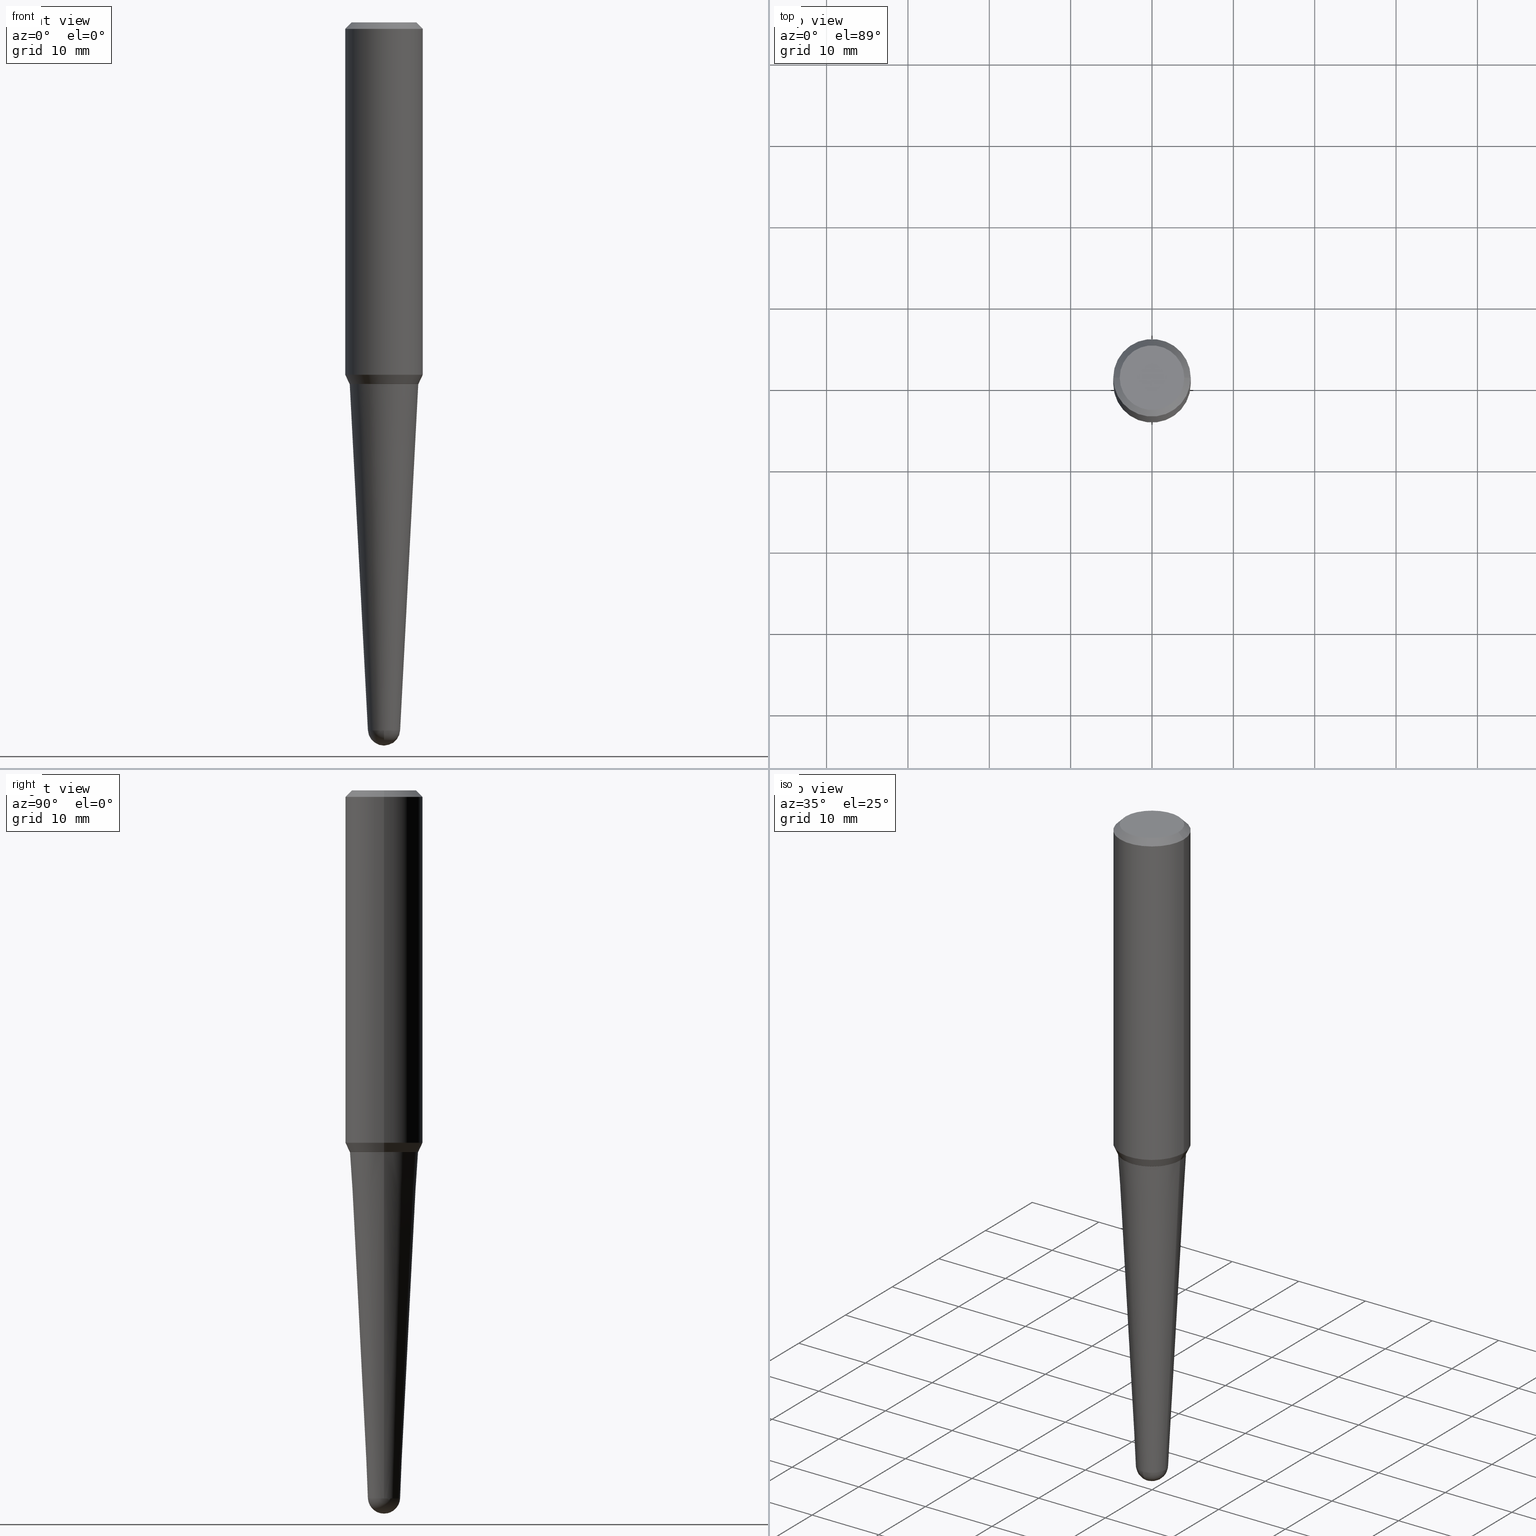
[diagram: canonical four-view strip — front | top / right | iso, engineering-drawing reading convention]
A machine part, canonical four-view strip (front | top / right | iso — engineering-drawing reading convention). The complete STEP part file that produces these views, byte-faithful:
ISO-10303-21;
HEADER;
FILE_DESCRIPTION (( 'STEP AP203' ),
    '1' );
FILE_NAME ('32480.STEP',
    '2024-03-04T15:26:24',
    ( '' ),
    ( '' ),
    'SwSTEP 2.0',
    'SolidWorks 2023',
    '' );
FILE_SCHEMA (( 'CONFIG_CONTROL_DESIGN' ));
ENDSEC;

DATA;
#1 = CONICAL_SURFACE ( 'NONE', #186, 0.07799296666433258585, 0.05235987755982991071 ) ;
#2 = CC_DESIGN_PERSON_AND_ORGANIZATION_ASSIGNMENT ( #125, #167, ( #275 ) ) ;
#3 = CARTESIAN_POINT ( 'NONE',  ( 8.378145410457613452E-29, -1.196177120752549174E-14, -3.425987438182573896 ) ) ;
#4 = AXIS2_PLACEMENT_3D ( 'NONE', #431, #114, #399 ) ;
#5 = DIRECTION ( 'NONE',  ( -1.000000000000000000, 6.982962677686265922E-15, -4.876176775795935793E-29 ) ) ;
#6 = VECTOR ( 'NONE', #201, 39.37007874015748143 ) ;
#7 = CARTESIAN_POINT ( 'NONE',  ( 4.278347676420896243E-29, -6.108346602306083167E-15, -1.749500000000000055 ) ) ;
#8 = VERTEX_POINT ( 'NONE', #298 ) ;
#9 = ORIENTED_EDGE ( 'NONE', *, *, #96, .F. ) ;
#10 = CARTESIAN_POINT ( 'NONE',  ( -1.450455682483482035E-44, 2.070866303999251778E-30, 5.931196827434296760E-16 ) ) ;
#11 = ORIENTED_EDGE ( 'NONE', *, *, #33, .F. ) ;
#12 = ORIENTED_EDGE ( 'NONE', *, *, #220, .T. ) ;
#13 = PERSON ( 'UNSPECIFIED', 'UNSPECIFIED', 'UNSPECIFIED', ('UNSPECIFIED'), ('UNSPECIFIED'), ('UNSPECIFIED') ) ;
#14 = FACE_OUTER_BOUND ( 'NONE', #237, .T. ) ;
#15 = CONICAL_SURFACE ( 'NONE', #144, 0.1668277464057543458, 0.4363323129985691717 ) ;
#16 = ORIENTED_EDGE ( 'NONE', *, *, #257, .T. ) ;
#17 = VECTOR ( 'NONE', #142, 39.37007874015748143 ) ;
#18 = DIRECTION ( 'NONE',  ( 6.982962677686265922E-15, 1.000000000000000000, 0.000000000000000000 ) ) ;
#19 = MECHANICAL_CONTEXT ( 'NONE', #287, 'mechanical' ) ;
#20 = PRODUCT_RELATED_PRODUCT_CATEGORY ( 'detail', '', ( #275 ) ) ;
#21 = DIRECTION ( 'NONE',  ( -2.445468806185136597E-29, 3.491481338843145583E-15, 1.000000000000000000 ) ) ;
#22 =( CONVERSION_BASED_UNIT ( 'INCH', #92 ) LENGTH_UNIT ( ) NAMED_UNIT ( #87 ) );
#23 = DIRECTION ( 'NONE',  ( -2.445468806185136877E-29, 3.491481338843145188E-15, 1.000000000000000000 ) ) ;
#24 = CARTESIAN_POINT ( 'NONE',  ( 8.378145410457613452E-29, -1.196177120752549174E-14, -3.425987438182573896 ) ) ;
#25 = CARTESIAN_POINT ( 'NONE',  ( -0.1663277464057546506, -4.928262623335933081E-15, -1.749999999999999556 ) ) ;
#26 = CARTESIAN_POINT ( 'NONE',  ( -0.1562500000000004718, 1.145642314307903527E-15, -6.443418326246425862E-16 ) ) ;
#27 = DIRECTION ( 'NONE',  ( 1.000000000000000000, -6.982962677686269866E-15, 0.000000000000000000 ) ) ;
#28 = ORIENTED_EDGE ( 'NONE', *, *, #123, .F. ) ;
#29 = APPROVAL_STATUS ( 'not_yet_approved' ) ;
#30 = LINE ( 'NONE', #178, #17 ) ;
#31 = AXIS2_PLACEMENT_3D ( 'NONE', #191, #47, #38 ) ;
#32 = AXIS2_PLACEMENT_3D ( 'NONE', #200, #384, #214 ) ;
#33 = EDGE_CURVE ( 'NONE', #401, #336, #405, .T. ) ;
#34 = APPROVAL_STATUS ( 'not_yet_approved' ) ;
#35 = ADVANCED_FACE ( 'NONE', ( #429 ), #120, .F. ) ;
#36 = PERSON_AND_ORGANIZATION ( #13, #69 ) ;
#37 = EDGE_CURVE ( 'NONE', #198, #332, #348, .T. ) ;
#38 = DIRECTION ( 'NONE',  ( 6.982962677686265922E-15, 1.000000000000000000, 0.000000000000000000 ) ) ;
#39 = COORDINATED_UNIVERSAL_TIME_OFFSET ( 5, 0, .BEHIND. ) ;
#40 = CONICAL_SURFACE ( 'NONE', #129, 0.1874999999999999722, 0.7853981633974499443 ) ;
#41 = CONICAL_SURFACE ( 'NONE', #407, 0.1874999999999999722, 0.7853981633974499443 ) ;
#42 = FACE_OUTER_BOUND ( 'NONE', #267, .T. ) ;
#43 = EDGE_CURVE ( 'NONE', #336, #401, #149, .T. ) ;
#44 = EDGE_CURVE ( 'NONE', #101, #8, #207, .T. ) ;
#45 = ORIENTED_EDGE ( 'NONE', *, *, #170, .T. ) ;
#46 = VECTOR ( 'NONE', #346, 39.37007874015748143 ) ;
#47 = DIRECTION ( 'NONE',  ( -1.000000000000000000, 6.982962677686265922E-15, -4.883557194083112901E-29 ) ) ;
#48 = ORIENTED_EDGE ( 'NONE', *, *, #220, .F. ) ;
#49 = EDGE_CURVE ( 'NONE', #121, #361, #80, .T. ) ;
#50 = CARTESIAN_POINT ( 'NONE',  ( -0.1874999999999999722, -1.699068257207900914E-15, -0.03125000000000003469 ) ) ;
#51 = CARTESIAN_POINT ( 'NONE',  ( 4.279570410823988484E-29, -6.110092342975504671E-15, -1.750000000000000000 ) ) ;
#52 = DIRECTION ( 'NONE',  ( 1.000000000000000000, -6.982962677686266711E-15, 0.000000000000000000 ) ) ;
#53 = ORIENTED_EDGE ( 'NONE', *, *, #460, .T. ) ;
#54 = AXIS2_PLACEMENT_3D ( 'NONE', #139, #273, #247 ) ;
#55 = ORIENTED_EDGE ( 'NONE', *, *, #282, .F. ) ;
#56 = DIRECTION ( 'NONE',  ( -1.000000000000000000, 6.982962677686265922E-15, -4.876176775795935793E-29 ) ) ;
#57 = DIRECTION ( 'NONE',  ( 1.000000000000000000, -6.982962677686265922E-15, 4.883557194083112340E-29 ) ) ;
#58 = ORIENTED_EDGE ( 'NONE', *, *, #419, .F. ) ;
#59 = PERSON_AND_ORGANIZATION ( #13, #69 ) ;
#60 = DIRECTION ( 'NONE',  ( 1.000000000000000000, -6.982962677686269866E-15, 0.000000000000000000 ) ) ;
#61 = DIRECTION ( 'NONE',  ( -2.445468806185136597E-29, 3.491481338843145583E-15, 1.000000000000000000 ) ) ;
#62 = DIRECTION ( 'NONE',  ( -2.445468806185136597E-29, 3.491481338843145583E-15, 1.000000000000000000 ) ) ;
#63 = ORIENTED_EDGE ( 'NONE', *, *, #460, .F. ) ;
#64 = VECTOR ( 'NONE', #23, 39.37007874015748143 ) ;
#65 =( NAMED_UNIT ( * ) PLANE_ANGLE_UNIT ( ) SI_UNIT ( $, .RADIAN. ) );
#66 = CARTESIAN_POINT ( 'NONE',  ( 8.293775826086788448E-29, -3.615217139357590850E-16, -1.750000000000000000 ) ) ;
#67 = ORIENTED_EDGE ( 'NONE', *, *, #123, .T. ) ;
#68 = DIRECTION ( 'NONE',  ( -1.000000000000000000, 6.982962677686265922E-15, -4.883557194083112901E-29 ) ) ;
#69 = ORGANIZATION ( 'UNSPECIFIED', 'UNSPECIFIED', '' ) ;
#70 = ADVANCED_FACE ( 'NONE', ( #327 ), #40, .T. ) ;
#71 = DESIGN_CONTEXT ( 'detailed design', #330, 'design' ) ;
#72 = DIRECTION ( 'NONE',  ( -2.445468806185136597E-29, 3.491481338843145583E-15, 1.000000000000000000 ) ) ;
#73 = EDGE_CURVE ( 'NONE', #361, #138, #107, .T. ) ;
#74 = DATE_TIME_ROLE ( 'creation_date' ) ;
#75 = AXIS2_PLACEMENT_3D ( 'NONE', #24, #99, #375 ) ;
#76 = PRODUCT_DEFINITION_FORMATION_WITH_SPECIFIED_SOURCE ( 'ANY', '', #275, .NOT_KNOWN. ) ;
#77 = VERTEX_POINT ( 'NONE', #206 ) ;
#78 = ORIENTED_EDGE ( 'NONE', *, *, #33, .T. ) ;
#79 = EDGE_CURVE ( 'NONE', #117, #198, #299, .T. ) ;
#80 = LINE ( 'NONE', #192, #325 ) ;
#81 = EDGE_LOOP ( 'NONE', ( #173, #45, #383, #278 ) ) ;
#82 = CARTESIAN_POINT ( 'NONE',  ( 7.642090019328561499E-31, -1.091087918388484350E-16, -0.03125000000000003469 ) ) ;
#83 = AXIS2_PLACEMENT_3D ( 'NONE', #134, #274, #408 ) ;
#84 = FACE_OUTER_BOUND ( 'NONE', #440, .T. ) ;
#85 = CARTESIAN_POINT ( 'NONE',  ( 4.169935664663897396E-29, -5.953562981677331975E-15, -1.705168209104609645 ) ) ;
#86 = EDGE_LOOP ( 'NONE', ( #199, #292, #244, #227 ) ) ;
#87 = DIMENSIONAL_EXPONENTS ( 1.000000000000000000, 0.000000000000000000, 0.000000000000000000, 0.000000000000000000, 0.000000000000000000, 0.000000000000000000, 0.000000000000000000 ) ;
#88 = DIRECTION ( 'NONE',  ( -2.445468806185136597E-29, 3.491481338843145583E-15, 1.000000000000000000 ) ) ;
#89 = ORIENTED_EDGE ( 'NONE', *, *, #187, .F. ) ;
#90 = AXIS2_PLACEMENT_3D ( 'NONE', #82, #88, #289 ) ;
#91 = CONICAL_SURFACE ( 'NONE', #421, 0.07799296666433258585, 0.05235987755982991071 ) ;
#92 = LENGTH_MEASURE_WITH_UNIT ( LENGTH_MEASURE( 0.02539999999999999897 ), #380 );
#93 = CARTESIAN_POINT ( 'NONE',  ( 8.378145410457613452E-29, -1.196177120752549174E-14, -3.425987438182573896 ) ) ;
#94 = ORIENTED_EDGE ( 'NONE', *, *, #453, .F. ) ;
#95 = CARTESIAN_POINT ( 'NONE',  ( 4.169935664663897396E-29, -5.953562981677331975E-15, -1.705168209104609645 ) ) ;
#96 = EDGE_CURVE ( 'NONE', #77, #309, #102, .T. ) ;
#97 = CARTESIAN_POINT ( 'NONE',  ( 8.659436449305203062E-29, -1.153036080066178855E-14, -3.421899999999999942 ) ) ;
#98 = ORIENTED_EDGE ( 'NONE', *, *, #96, .T. ) ;
#99 = DIRECTION ( 'NONE',  ( -2.445468806185136597E-29, 3.491481338843145583E-15, 1.000000000000000000 ) ) ;
#100 = CARTESIAN_POINT ( 'NONE',  ( 0.1658277464057546224, -7.268061307051711819E-15, -1.750000000000000000 ) ) ;
#101 = VERTEX_POINT ( 'NONE', #100 ) ;
#102 = CIRCLE ( 'NONE', #356, 0.1663277464057546506 ) ;
#103 = AXIS2_PLACEMENT_3D ( 'NONE', #95, #276, #268 ) ;
#104 = CC_DESIGN_PERSON_AND_ORGANIZATION_ASSIGNMENT ( #36, #222, ( #223 ) ) ;
#105 = DIRECTION ( 'NONE',  ( 1.000000000000000000, -6.982962677686266711E-15, 0.000000000000000000 ) ) ;
#106 = CC_DESIGN_DATE_AND_TIME_ASSIGNMENT ( #459, #74, ( #223 ) ) ;
#107 = CIRCLE ( 'NONE', #184, 0.1875000000000002220 ) ;
#108 = AXIS2_PLACEMENT_3D ( 'NONE', #97, #449, #412 ) ;
#109 = CYLINDRICAL_SURFACE ( 'NONE', #381, 0.1875000000000001110 ) ;
#110 = COORDINATED_UNIVERSAL_TIME_OFFSET ( 5, 0, .BEHIND. ) ;
#111 = ADVANCED_FACE ( 'NONE', ( #168 ), #452, .F. ) ;
#112 = FACE_OUTER_BOUND ( 'NONE', #158, .T. ) ;
#113 = ORIENTED_EDGE ( 'NONE', *, *, #340, .T. ) ;
#114 = DIRECTION ( 'NONE',  ( -2.445468806185136597E-29, 3.491481338843145583E-15, 1.000000000000000000 ) ) ;
#115 = EDGE_LOOP ( 'NONE', ( #202, #98, #148, #195 ) ) ;
#116 = DIRECTION ( 'NONE',  ( 1.000000000000000000, -6.982962677686265922E-15, 0.000000000000000000 ) ) ;
#117 = VERTEX_POINT ( 'NONE', #128 ) ;
#118 = LINE ( 'NONE', #236, #264 ) ;
#119 = ADVANCED_BREP_SHAPE_REPRESENTATION ( '32480', ( #358, #210, #32 ), #368 ) ;
#120 = PLANE ( 'NONE',  #394 ) ;
#121 = VERTEX_POINT ( 'NONE', #140 ) ;
#122 = CARTESIAN_POINT ( 'NONE',  ( 4.279570410823988484E-29, -6.110092342975504671E-15, -1.750000000000000000 ) ) ;
#123 = EDGE_CURVE ( 'NONE', #309, #77, #190, .T. ) ;
#124 = ORIENTED_EDGE ( 'NONE', *, *, #379, .F. ) ;
#125 = PERSON_AND_ORGANIZATION ( #13, #69 ) ;
#126 = DIRECTION ( 'NONE',  ( 1.000000000000000000, -6.982962677686267499E-15, 0.000000000000000000 ) ) ;
#127 = LINE ( 'NONE', #171, #208 ) ;
#128 = CARTESIAN_POINT ( 'NONE',  ( 8.853766987427507370E-29, -1.179826324747476745E-14, -3.500000000000000000 ) ) ;
#129 = AXIS2_PLACEMENT_3D ( 'NONE', #295, #433, #234 ) ;
#130 = CIRCLE ( 'NONE', #415, 0.1668277464057543458 ) ;
#131 = ORIENTED_EDGE ( 'NONE', *, *, #353, .T. ) ;
#132 = EDGE_CURVE ( 'NONE', #138, #401, #246, .T. ) ;
#133 = COORDINATED_UNIVERSAL_TIME_OFFSET ( 5, 0, .BEHIND. ) ;
#134 = CARTESIAN_POINT ( 'NONE',  ( 1.575717852203708981E-44, -2.249707484444906198E-30, -6.443418326246348948E-16 ) ) ;
#135 = ORIENTED_EDGE ( 'NONE', *, *, #221, .T. ) ;
#136 = CARTESIAN_POINT ( 'NONE',  ( -0.1668277464057543458, -4.922964168987714623E-15, -1.749500000000000055 ) ) ;
#137 = CARTESIAN_POINT ( 'NONE',  ( 4.279570410823988484E-29, -6.110092342975503093E-15, -1.749999999999999556 ) ) ;
#138 = VERTEX_POINT ( 'NONE', #444 ) ;
#139 = CARTESIAN_POINT ( 'NONE',  ( 1.575717852203708981E-44, -2.249707484444906198E-30, -6.443418326246348948E-16 ) ) ;
#140 = CARTESIAN_POINT ( 'NONE',  ( 0.1668277464057543458, -7.273298529059973963E-15, -1.749500000000000055 ) ) ;
#141 = ORIENTED_EDGE ( 'NONE', *, *, #448, .T. ) ;
#142 = DIRECTION ( 'NONE',  ( -0.4226182617406874509, 6.167240084480771347E-15, 0.9063077870366555988 ) ) ;
#143 = DATE_AND_TIME ( #147, #151 ) ;
#144 = AXIS2_PLACEMENT_3D ( 'NONE', #391, #72, #352 ) ;
#145 = DIRECTION ( 'NONE',  ( -2.445468806185136597E-29, 3.491481338843145583E-15, 1.000000000000000000 ) ) ;
#146 = UNCERTAINTY_MEASURE_WITH_UNIT (LENGTH_MEASURE( 1.000000000000000082E-05 ), #22, 'distance_accuracy_value', 'NONE');
#147 = CALENDAR_DATE ( 2024, 4, 3 ) ;
#148 = ORIENTED_EDGE ( 'NONE', *, *, #187, .T. ) ;
#149 = CIRCLE ( 'NONE', #4, 0.1874999999999999722 ) ;
#150 = CC_DESIGN_PERSON_AND_ORGANIZATION_ASSIGNMENT ( #350, #387, ( #76 ) ) ;
#151 = LOCAL_TIME ( 10, 26, 24.00000000000000000, #39 ) ;
#152 = DIRECTION ( 'NONE',  ( -2.445468806185136597E-29, 3.491481338843145583E-15, 1.000000000000000000 ) ) ;
#153 = DIRECTION ( 'NONE',  ( -2.445468806185136877E-29, 3.491481338843145188E-15, 1.000000000000000000 ) ) ;
#154 = CARTESIAN_POINT ( 'NONE',  ( 8.378145410457613452E-29, -1.196177120752549174E-14, -3.425987438182573896 ) ) ;
#155 = EDGE_LOOP ( 'NONE', ( #55, #402, #345, #302 ) ) ;
#156 = DIRECTION ( 'NONE',  ( 1.000000000000000000, -6.982962677686266711E-15, 0.000000000000000000 ) ) ;
#157 = ORIENTED_EDGE ( 'NONE', *, *, #79, .T. ) ;
#158 = EDGE_LOOP ( 'NONE', ( #124, #176, #347, #78 ) ) ;
#159 = FACE_OUTER_BOUND ( 'NONE', #400, .T. ) ;
#160 = AXIS2_PLACEMENT_3D ( 'NONE', #454, #57, #404 ) ;
#161 = ORIENTED_EDGE ( 'NONE', *, *, #170, .F. ) ;
#162 = CIRCLE ( 'NONE', #108, 0.07809999999999991949 ) ;
#163 = DIRECTION ( 'NONE',  ( 0.7071067811865957564, -2.468850131082761932E-15, 0.7071067811864992780 ) ) ;
#164 = APPROVAL_STATUS ( 'not_yet_approved' ) ;
#165 = DIRECTION ( 'NONE',  ( 1.000000000000000000, -6.982962677686269866E-15, 0.000000000000000000 ) ) ;
#166 = ORIENTED_EDGE ( 'NONE', *, *, #419, .T. ) ;
#167 = PERSON_AND_ORGANIZATION_ROLE ( 'design_owner' ) ;
#168 = FACE_OUTER_BOUND ( 'NONE', #313, .T. ) ;
#169 = CC_DESIGN_PERSON_AND_ORGANIZATION_ASSIGNMENT ( #393, #177, ( #260 ) ) ;
#170 = EDGE_CURVE ( 'NONE', #117, #434, #162, .T. ) ;
#171 = CARTESIAN_POINT ( 'NONE',  ( 0.07799296666433258585, -1.250639318286455540E-14, -3.425987438182573896 ) ) ;
#172 = CARTESIAN_POINT ( 'NONE',  ( 8.378145410457613452E-29, -1.196177120752549174E-14, -3.425987438182573896 ) ) ;
#173 = ORIENTED_EDGE ( 'NONE', *, *, #79, .F. ) ;
#174 = DIRECTION ( 'NONE',  ( 1.000000000000000000, -6.982962677686267499E-15, 0.000000000000000000 ) ) ;
#175 = FACE_OUTER_BOUND ( 'NONE', #81, .T. ) ;
#176 = ORIENTED_EDGE ( 'NONE', *, *, #233, .F. ) ;
#177 = PERSON_AND_ORGANIZATION_ROLE ( 'classification_officer' ) ;
#178 = CARTESIAN_POINT ( 'NONE',  ( -0.1668277464057543458, -4.922964168987713834E-15, -1.749500000000000055 ) ) ;
#179 = AXIS2_PLACEMENT_3D ( 'NONE', #66, #442, #342 ) ;
#180 = DATE_AND_TIME ( #219, #230 ) ;
#181 = CALENDAR_DATE ( 2024, 4, 3 ) ;
#182 = EDGE_CURVE ( 'NONE', #77, #441, #382, .T. ) ;
#183 = DIRECTION ( 'NONE',  ( 0.7071067811865486830, -7.319954787623259201E-15, -0.7071067811865463515 ) ) ;
#184 = AXIS2_PLACEMENT_3D ( 'NONE', #85, #62, #204 ) ;
#185 = DATE_TIME_ROLE ( 'classification_date' ) ;
#186 = AXIS2_PLACEMENT_3D ( 'NONE', #3, #145, #286 ) ;
#187 = EDGE_CURVE ( 'NONE', #309, #121, #212, .T. ) ;
#188 = APPROVAL ( #34, 'UNSPECIFIED' ) ;
#189 = CC_DESIGN_APPROVAL ( #188, ( #260 ) ) ;
#190 = CIRCLE ( 'NONE', #308, 0.1663277464057546506 ) ;
#191 = CARTESIAN_POINT ( 'NONE',  ( 8.659436449305203062E-29, -1.153036080066178855E-14, -3.421899999999999942 ) ) ;
#192 = CARTESIAN_POINT ( 'NONE',  ( 0.1668277464057543458, -7.273298529059973963E-15, -1.749500000000000055 ) ) ;
#193 = ORIENTED_EDGE ( 'NONE', *, *, #43, .F. ) ;
#194 = FACE_OUTER_BOUND ( 'NONE', #386, .T. ) ;
#195 = ORIENTED_EDGE ( 'NONE', *, *, #334, .F. ) ;
#196 = DIRECTION ( 'NONE',  ( -2.445468806185136597E-29, 3.491481338843145583E-15, 1.000000000000000000 ) ) ;
#197 = AXIS2_PLACEMENT_3D ( 'NONE', #240, #61, #174 ) ;
#198 = VERTEX_POINT ( 'NONE', #272 ) ;
#199 = ORIENTED_EDGE ( 'NONE', *, *, #461, .F. ) ;
#200 = CARTESIAN_POINT ( 'NONE',  ( 0.000000000000000000, 0.000000000000000000, 0.000000000000000000 ) ) ;
#201 = DIRECTION ( 'NONE',  ( -0.7071067811865957564, 7.493145998870527710E-15, 0.7071067811864992780 ) ) ;
#202 = ORIENTED_EDGE ( 'NONE', *, *, #182, .F. ) ;
#203 = FACE_OUTER_BOUND ( 'NONE', #239, .T. ) ;
#204 = DIRECTION ( 'NONE',  ( 1.000000000000000000, -6.982962677686265133E-15, 0.000000000000000000 ) ) ;
#205 = DIRECTION ( 'NONE',  ( -1.000000000000000000, 6.982962677686266711E-15, 0.000000000000000000 ) ) ;
#206 = CARTESIAN_POINT ( 'NONE',  ( -0.1663277464057546506, -4.925613396161822668E-15, -1.749999999999999556 ) ) ;
#207 = CIRCLE ( 'NONE', #307, 0.1658277464057546224 ) ;
#208 = VECTOR ( 'NONE', #341, 39.37007874015748854 ) ;
#209 = VERTEX_POINT ( 'NONE', #215 ) ;
#210 = MANIFOLD_SOLID_BREP ( 'Body-Move/Copy2[2]', #360 ) ;
#211 =( NAMED_UNIT ( * ) SI_UNIT ( $, .STERADIAN. ) SOLID_ANGLE_UNIT ( ) );
#212 = LINE ( 'NONE', #385, #362 ) ;
#213 = ORIENTED_EDGE ( 'NONE', *, *, #37, .T. ) ;
#214 = DIRECTION ( 'NONE',  ( 1.000000000000000000, 0.000000000000000000, 0.000000000000000000 ) ) ;
#215 = CARTESIAN_POINT ( 'NONE',  ( 0.07799296666433258585, -9.887227244958132819E-15, -3.425987438182573896 ) ) ;
#216 = EDGE_LOOP ( 'NONE', ( #343, #131 ) ) ;
#217 = APPROVAL_DATE_TIME ( #349, #351 ) ;
#218 = AXIS2_PLACEMENT_3D ( 'NONE', #339, #443, #56 ) ;
#219 = CALENDAR_DATE ( 2024, 4, 3 ) ;
#220 = EDGE_CURVE ( 'NONE', #209, #198, #430, .T. ) ;
#221 = EDGE_CURVE ( 'NONE', #121, #441, #130, .T. ) ;
#222 = PERSON_AND_ORGANIZATION_ROLE ( 'creator' ) ;
#223 = PRODUCT_DEFINITION ( 'UNKNOWN', '', #76, #71 ) ;
#224 = AXIS2_PLACEMENT_3D ( 'NONE', #122, #366, #283 ) ;
#225 = PERSON_AND_ORGANIZATION ( #13, #69 ) ;
#226 = AXIS2_PLACEMENT_3D ( 'NONE', #263, #294, #331 ) ;
#227 = ORIENTED_EDGE ( 'NONE', *, *, #293, .F. ) ;
#228 = DIRECTION ( 'NONE',  ( 0.4226182617406874509, 2.132291770428443236E-16, 0.9063077870366555988 ) ) ;
#229 = EDGE_LOOP ( 'NONE', ( #94, #16, #53, #166, #397 ) ) ;
#230 = LOCAL_TIME ( 10, 26, 24.00000000000000000, #133 ) ;
#231 = AXIS2_PLACEMENT_3D ( 'NONE', #301, #297, #52 ) ;
#232 = DIRECTION ( 'NONE',  ( -2.445468806185136597E-29, 3.491481338843145583E-15, 1.000000000000000000 ) ) ;
#233 = EDGE_CURVE ( 'NONE', #455, #364, #438, .T. ) ;
#234 = DIRECTION ( 'NONE',  ( -1.000000000000000000, 6.982962677686266711E-15, 0.000000000000000000 ) ) ;
#235 = ORIENTED_EDGE ( 'NONE', *, *, #73, .T. ) ;
#236 = CARTESIAN_POINT ( 'NONE',  ( 0.1875000000000001110, -1.309305502066173628E-15, 5.931196827434387479E-16 ) ) ;
#237 = EDGE_LOOP ( 'NONE', ( #213, #436, #329, #58, #12 ) ) ;
#238 = ADVANCED_FACE ( 'NONE', ( #175 ), #242, .T. ) ;
#239 = EDGE_LOOP ( 'NONE', ( #296, #413 ) ) ;
#240 = CARTESIAN_POINT ( 'NONE',  ( 4.279570410823988484E-29, -6.110092342975503093E-15, -1.749999999999999556 ) ) ;
#241 = AXIS2_PLACEMENT_3D ( 'NONE', #7, #196, #156 ) ;
#242 = SPHERICAL_SURFACE ( 'NONE', #446, 0.07809999999999991949 ) ;
#243 = DIRECTION ( 'NONE',  ( -2.445468806185136597E-29, 3.491481338843145583E-15, 1.000000000000000000 ) ) ;
#244 = ORIENTED_EDGE ( 'NONE', *, *, #43, .T. ) ;
#245 = CC_DESIGN_PERSON_AND_ORGANIZATION_ASSIGNMENT ( #288, #285, ( #76 ) ) ;
#246 = LINE ( 'NONE', #279, #64 ) ;
#247 = DIRECTION ( 'NONE',  ( 1.000000000000000000, -6.982962677686266711E-15, 4.891558762689330142E-29 ) ) ;
#248 = DIRECTION ( 'NONE',  ( -2.445468806185136597E-29, 3.491481338843145583E-15, 1.000000000000000000 ) ) ;
#249 = APPROVAL_DATE_TIME ( #456, #188 ) ;
#250 = LOCAL_TIME ( 10, 26, 24.00000000000000000, #320 ) ;
#251 = AXIS2_PLACEMENT_3D ( 'NONE', #154, #152, #265 ) ;
#252 = AXIS2_PLACEMENT_3D ( 'NONE', #269, #21, #165 ) ;
#253 = CC_DESIGN_APPROVAL ( #351, ( #76 ) ) ;
#254 = CALENDAR_DATE ( 2024, 4, 3 ) ;
#255 = ADVANCED_FACE ( 'NONE', ( #312 ), #322, .T. ) ;
#256 = FACE_OUTER_BOUND ( 'NONE', #155, .T. ) ;
#257 = EDGE_CURVE ( 'NONE', #332, #434, #318, .T. ) ;
#258 = COORDINATED_UNIVERSAL_TIME_OFFSET ( 5, 0, .BEHIND. ) ;
#259 = CYLINDRICAL_SURFACE ( 'NONE', #226, 0.1875000000000001110 ) ;
#260 = SECURITY_CLASSIFICATION ( '', '', #418 ) ;
#261 = DIRECTION ( 'NONE',  ( 2.438088387897960049E-29, -3.491481338843145188E-15, -1.000000000000000000 ) ) ;
#262 = CARTESIAN_POINT ( 'NONE',  ( 4.279570410823988484E-29, -6.110092342975504671E-15, -1.750000000000000000 ) ) ;
#263 = CARTESIAN_POINT ( 'NONE',  ( -1.450455682483482035E-44, 2.070866303999251778E-30, 5.931196827434296760E-16 ) ) ;
#264 = VECTOR ( 'NONE', #153, 39.37007874015748143 ) ;
#265 = DIRECTION ( 'NONE',  ( 1.000000000000000000, -6.982962677686269866E-15, 0.000000000000000000 ) ) ;
#266 = ADVANCED_FACE ( 'NONE', ( #305 ), #91, .T. ) ;
#267 = EDGE_LOOP ( 'NONE', ( #235, #378, #193, #306 ) ) ;
#268 = DIRECTION ( 'NONE',  ( 1.000000000000000000, -6.982962677686265133E-15, 0.000000000000000000 ) ) ;
#269 = CARTESIAN_POINT ( 'NONE',  ( 8.378145410457613452E-29, -1.196177120752549174E-14, -3.425987438182573896 ) ) ;
#270 = FACE_OUTER_BOUND ( 'NONE', #115, .T. ) ;
#271 = AXIS2_PLACEMENT_3D ( 'NONE', #303, #338, #126 ) ;
#272 = CARTESIAN_POINT ( 'NONE',  ( 5.446219753391471810E-16, 0.07799296666432059544, -3.425987438182573896 ) ) ;
#273 = DIRECTION ( 'NONE',  ( -2.445468806185136597E-29, 3.491481338843145583E-15, 1.000000000000000000 ) ) ;
#274 = DIRECTION ( 'NONE',  ( -2.445468806185136597E-29, 3.491481338843145583E-15, 1.000000000000000000 ) ) ;
#275 = PRODUCT ( '32480', '32480', '', ( #19 ) ) ;
#276 = DIRECTION ( 'NONE',  ( -2.445468806185136597E-29, 3.491481338843145583E-15, 1.000000000000000000 ) ) ;
#277 = CARTESIAN_POINT ( 'NONE',  ( 4.279570410823988484E-29, -6.110092342975503093E-15, -1.749999999999999556 ) ) ;
#278 = ORIENTED_EDGE ( 'NONE', *, *, #37, .F. ) ;
#279 = CARTESIAN_POINT ( 'NONE',  ( -0.1875000000000001110, 1.332267629550190807E-15, 5.931196827434205055E-16 ) ) ;
#280 = CIRCLE ( 'NONE', #75, 0.07799296666433258585 ) ;
#281 = APPROVAL_DATE_TIME ( #180, #426 ) ;
#282 = EDGE_CURVE ( 'NONE', #441, #138, #30, .T. ) ;
#283 = DIRECTION ( 'NONE',  ( 1.000000000000000000, -6.982962677686265922E-15, 0.000000000000000000 ) ) ;
#284 = AXIS2_PLACEMENT_3D ( 'NONE', #172, #344, #27 ) ;
#285 = PERSON_AND_ORGANIZATION_ROLE ( 'creator' ) ;
#286 = DIRECTION ( 'NONE',  ( 1.000000000000000000, -6.982962677686269866E-15, 0.000000000000000000 ) ) ;
#287 = APPLICATION_CONTEXT ( 'configuration controlled 3d designs of mechanical parts and assemblies' ) ;
#288 = PERSON_AND_ORGANIZATION ( #13, #69 ) ;
#289 = DIRECTION ( 'NONE',  ( 1.000000000000000000, -6.982962677686266711E-15, 0.000000000000000000 ) ) ;
#290 = CIRCLE ( 'NONE', #231, 0.1668277464057543458 ) ;
#291 = APPROVAL_PERSON_ORGANIZATION ( #225, #351, #354 ) ;
#292 = ORIENTED_EDGE ( 'NONE', *, *, #379, .T. ) ;
#293 = EDGE_CURVE ( 'NONE', #455, #401, #317, .T. ) ;
#294 = DIRECTION ( 'NONE',  ( -2.445468806185136597E-29, 3.491481338843145583E-15, 1.000000000000000000 ) ) ;
#295 = CARTESIAN_POINT ( 'NONE',  ( 7.642090019328561499E-31, -1.091087918388484350E-16, -0.03125000000000003469 ) ) ;
#296 = ORIENTED_EDGE ( 'NONE', *, *, #233, .T. ) ;
#297 = DIRECTION ( 'NONE',  ( -2.445468806185136597E-29, 3.491481338843145583E-15, 1.000000000000000000 ) ) ;
#298 = CARTESIAN_POINT ( 'NONE',  ( -0.1658277464057546224, -4.931815337014733979E-15, -1.750000000000000000 ) ) ;
#299 = CIRCLE ( 'NONE', #160, 0.07809999999999991949 ) ;
#300 = CIRCLE ( 'NONE', #103, 0.1875000000000002220 ) ;
#301 = CARTESIAN_POINT ( 'NONE',  ( 4.278347676420896243E-29, -6.108346602306083167E-15, -1.749500000000000055 ) ) ;
#302 = ORIENTED_EDGE ( 'NONE', *, *, #448, .F. ) ;
#303 = CARTESIAN_POINT ( 'NONE',  ( 4.279570410823988484E-29, -6.110092342975503093E-15, -1.749999999999999556 ) ) ;
#304 = PLANE ( 'NONE',  #218 ) ;
#305 = FACE_OUTER_BOUND ( 'NONE', #229, .T. ) ;
#306 = ORIENTED_EDGE ( 'NONE', *, *, #340, .F. ) ;
#307 = AXIS2_PLACEMENT_3D ( 'NONE', #262, #396, #116 ) ;
#308 = AXIS2_PLACEMENT_3D ( 'NONE', #277, #373, #370 ) ;
#309 = VERTEX_POINT ( 'NONE', #374 ) ;
#310 = ADVANCED_FACE ( 'NONE', ( #159 ), #259, .T. ) ;
#311 = CARTESIAN_POINT ( 'NONE',  ( -5.541733590371248362E-16, -0.07799296666434411829, -3.425987438182573896 ) ) ;
#312 = FACE_OUTER_BOUND ( 'NONE', #359, .T. ) ;
#313 = EDGE_LOOP ( 'NONE', ( #28, #9 ) ) ;
#314 = CARTESIAN_POINT ( 'NONE',  ( 4.278347676420896243E-29, -6.108346602306083167E-15, -1.749500000000000055 ) ) ;
#315 = ORIENTED_EDGE ( 'NONE', *, *, #132, .F. ) ;
#316 = CALENDAR_DATE ( 2024, 4, 3 ) ;
#317 = LINE ( 'NONE', #458, #46 ) ;
#318 = CIRCLE ( 'NONE', #252, 0.07799296666433258585 ) ;
#319 = APPROVAL_PERSON_ORGANIZATION ( #59, #426, #369 ) ;
#320 = COORDINATED_UNIVERSAL_TIME_OFFSET ( 5, 0, .BEHIND. ) ;
#321 = ADVANCED_FACE ( 'NONE', ( #84 ), #432, .T. ) ;
#322 = CONICAL_SURFACE ( 'NONE', #271, 0.1663277464057546506, 0.7853981633975165577 ) ;
#323 = ADVANCED_FACE ( 'NONE', ( #42 ), #109, .T. ) ;
#324 = ORIENTED_EDGE ( 'NONE', *, *, #221, .F. ) ;
#325 = VECTOR ( 'NONE', #228, 39.37007874015748143 ) ;
#326 = CONICAL_SURFACE ( 'NONE', #241, 0.1668277464057543458, 0.4363323129985691717 ) ;
#327 = FACE_OUTER_BOUND ( 'NONE', #86, .T. ) ;
#328 = ADVANCED_FACE ( 'NONE', ( #256 ), #326, .T. ) ;
#329 = ORIENTED_EDGE ( 'NONE', *, *, #44, .F. ) ;
#330 = APPLICATION_CONTEXT ( 'configuration controlled 3d designs of mechanical parts and assemblies' ) ;
#331 = DIRECTION ( 'NONE',  ( 1.000000000000000000, -6.982962677686266711E-15, 4.852736867747363404E-29 ) ) ;
#332 = VERTEX_POINT ( 'NONE', #363 ) ;
#333 = CIRCLE ( 'NONE', #54, 0.1562500000000004718 ) ;
#334 = EDGE_CURVE ( 'NONE', #441, #121, #290, .T. ) ;
#335 = LOCAL_TIME ( 10, 26, 24.00000000000000000, #258 ) ;
#336 = VERTEX_POINT ( 'NONE', #425 ) ;
#337 = PRODUCT_DEFINITION_SHAPE ( 'NONE', 'NONE',  #223 ) ;
#338 = DIRECTION ( 'NONE',  ( -2.445468806185136597E-29, 3.491481338843145583E-15, 1.000000000000000000 ) ) ;
#339 = CARTESIAN_POINT ( 'NONE',  ( 7.878589261018543660E-45, -1.124853742222452924E-30, -3.221709163123173488E-16 ) ) ;
#340 = EDGE_CURVE ( 'NONE', #361, #336, #118, .T. ) ;
#341 = DIRECTION ( 'NONE',  ( 0.05233595624294386239, 3.121236355867708811E-15, 0.9986295347545738332 ) ) ;
#342 = DIRECTION ( 'NONE',  ( 1.000000000000000000, -6.982962677686265922E-15, 4.876176775795935793E-29 ) ) ;
#343 = ORIENTED_EDGE ( 'NONE', *, *, #44, .T. ) ;
#344 = DIRECTION ( 'NONE',  ( -2.445468806185136597E-29, 3.491481338843145583E-15, 1.000000000000000000 ) ) ;
#345 = ORIENTED_EDGE ( 'NONE', *, *, #49, .T. ) ;
#346 = DIRECTION ( 'NONE',  ( -0.7071067811865486830, 2.468850131082269288E-15, -0.7071067811865463515 ) ) ;
#347 = ORIENTED_EDGE ( 'NONE', *, *, #293, .T. ) ;
#348 = CIRCLE ( 'NONE', #251, 0.07799296666433258585 ) ;
#349 = DATE_AND_TIME ( #181, #428 ) ;
#350 = PERSON_AND_ORGANIZATION ( #13, #69 ) ;
#351 = APPROVAL ( #29, 'UNSPECIFIED' ) ;
#352 = DIRECTION ( 'NONE',  ( 1.000000000000000000, -6.982962677686266711E-15, 0.000000000000000000 ) ) ;
#353 = EDGE_CURVE ( 'NONE', #8, #101, #389, .T. ) ;
#354 = APPROVAL_ROLE ( '' ) ;
#355 = DIRECTION ( 'NONE',  ( 1.000000000000000000, -6.982962677686266711E-15, 4.852736867747363404E-29 ) ) ;
#356 = AXIS2_PLACEMENT_3D ( 'NONE', #137, #248, #410 ) ;
#357 = VECTOR ( 'NONE', #411, 39.37007874015748854 ) ;
#358 = MANIFOLD_SOLID_BREP ( 'Body-Move/Copy2[1]', #414 ) ;
#359 = EDGE_LOOP ( 'NONE', ( #67, #445, #324, #89 ) ) ;
#360 = CLOSED_SHELL ( 'NONE', ( #70, #323, #372, #255, #111, #462, #328, #310, #417, #424 ) ) ;
#361 = VERTEX_POINT ( 'NONE', #435 ) ;
#362 = VECTOR ( 'NONE', #163, 39.37007874015748143 ) ;
#363 = CARTESIAN_POINT ( 'NONE',  ( -0.07799296666433258585, -8.169706592751506412E-15, -3.425987438182573896 ) ) ;
#364 = VERTEX_POINT ( 'NONE', #422 ) ;
#365 = LINE ( 'NONE', #439, #398 ) ;
#366 = DIRECTION ( 'NONE',  ( -2.445468806185136597E-29, 3.491481338843145583E-15, 1.000000000000000000 ) ) ;
#367 = ORIENTED_EDGE ( 'NONE', *, *, #49, .F. ) ;
#368 =( GEOMETRIC_REPRESENTATION_CONTEXT ( 3 ) GLOBAL_UNCERTAINTY_ASSIGNED_CONTEXT ( ( #146 ) ) GLOBAL_UNIT_ASSIGNED_CONTEXT ( ( #22, #65, #211 ) ) REPRESENTATION_CONTEXT ( 'NONE', 'WORKASPACE' ) );
#369 = APPROVAL_ROLE ( '' ) ;
#370 = DIRECTION ( 'NONE',  ( 1.000000000000000000, -6.982962677686267499E-15, 0.000000000000000000 ) ) ;
#371 = APPLICATION_PROTOCOL_DEFINITION ( 'international standard', 'config_control_design', 1994, #330 ) ;
#372 = ADVANCED_FACE ( 'NONE', ( #194 ), #15, .T. ) ;
#373 = DIRECTION ( 'NONE',  ( -2.445468806185136597E-29, 3.491481338843145583E-15, 1.000000000000000000 ) ) ;
#374 = CARTESIAN_POINT ( 'NONE',  ( 0.1663277464057546506, -7.271552788390554826E-15, -1.749999999999999556 ) ) ;
#375 = DIRECTION ( 'NONE',  ( 1.000000000000000000, -6.982962677686269866E-15, 0.000000000000000000 ) ) ;
#376 = CC_DESIGN_DATE_AND_TIME_ASSIGNMENT ( #143, #185, ( #260 ) ) ;
#377 = CARTESIAN_POINT ( 'NONE',  ( 8.659436449305203062E-29, -1.153036080066178855E-14, -3.421899999999999942 ) ) ;
#378 = ORIENTED_EDGE ( 'NONE', *, *, #132, .T. ) ;
#379 = EDGE_CURVE ( 'NONE', #364, #336, #365, .T. ) ;
#380 =( LENGTH_UNIT ( ) NAMED_UNIT ( * ) SI_UNIT ( $, .METRE. ) );
#381 = AXIS2_PLACEMENT_3D ( 'NONE', #10, #232, #355 ) ;
#382 = LINE ( 'NONE', #25, #6 ) ;
#383 = ORIENTED_EDGE ( 'NONE', *, *, #257, .F. ) ;
#384 = DIRECTION ( 'NONE',  ( 0.000000000000000000, 0.000000000000000000, 1.000000000000000000 ) ) ;
#385 = CARTESIAN_POINT ( 'NONE',  ( 0.1663277464057546506, -7.271552788390554826E-15, -1.749999999999999556 ) ) ;
#386 = EDGE_LOOP ( 'NONE', ( #135, #450, #437, #367 ) ) ;
#387 = PERSON_AND_ORGANIZATION_ROLE ( 'design_supplier' ) ;
#388 = SHAPE_DEFINITION_REPRESENTATION ( #337, #119 ) ;
#389 = CIRCLE ( 'NONE', #224, 0.1658277464057546224 ) ;
#390 = CC_DESIGN_SECURITY_CLASSIFICATION ( #260, ( #76 ) ) ;
#391 = CARTESIAN_POINT ( 'NONE',  ( 4.278347676420896243E-29, -6.108346602306083167E-15, -1.749500000000000055 ) ) ;
#392 = CARTESIAN_POINT ( 'NONE',  ( 7.642090019328561499E-31, -1.091087918388484350E-16, -0.03125000000000003469 ) ) ;
#393 = PERSON_AND_ORGANIZATION ( #13, #69 ) ;
#394 = AXIS2_PLACEMENT_3D ( 'NONE', #51, #261, #5 ) ;
#395 = CONICAL_SURFACE ( 'NONE', #197, 0.1663277464057546506, 0.7853981633975165577 ) ;
#396 = DIRECTION ( 'NONE',  ( -2.445468806185136597E-29, 3.491481338843145583E-15, 1.000000000000000000 ) ) ;
#397 = ORIENTED_EDGE ( 'NONE', *, *, #353, .F. ) ;
#398 = VECTOR ( 'NONE', #183, 39.37007874015748143 ) ;
#399 = DIRECTION ( 'NONE',  ( 1.000000000000000000, -6.982962677686266711E-15, 0.000000000000000000 ) ) ;
#400 = EDGE_LOOP ( 'NONE', ( #315, #141, #113, #11 ) ) ;
#401 = VERTEX_POINT ( 'NONE', #50 ) ;
#402 = ORIENTED_EDGE ( 'NONE', *, *, #334, .T. ) ;
#403 = LINE ( 'NONE', #451, #357 ) ;
#404 = DIRECTION ( 'NONE',  ( 6.982962677686265133E-15, 1.000000000000000000, 0.000000000000000000 ) ) ;
#405 = CIRCLE ( 'NONE', #90, 0.1874999999999999722 ) ;
#406 = ADVANCED_FACE ( 'NONE', ( #14 ), #1, .T. ) ;
#407 = AXIS2_PLACEMENT_3D ( 'NONE', #392, #409, #205 ) ;
#408 = DIRECTION ( 'NONE',  ( 1.000000000000000000, -6.982962677686266711E-15, 4.891558762689330142E-29 ) ) ;
#409 = DIRECTION ( 'NONE',  ( 2.445468806185136597E-29, -3.491481338843145583E-15, -1.000000000000000000 ) ) ;
#410 = DIRECTION ( 'NONE',  ( 1.000000000000000000, -6.982962677686267499E-15, 0.000000000000000000 ) ) ;
#411 = DIRECTION ( 'NONE',  ( -0.05233595624294386239, 3.858565720288030357E-15, 0.9986295347545738332 ) ) ;
#412 = DIRECTION ( 'NONE',  ( -7.105427357600999492E-15, -1.000000000000000000, 0.000000000000000000 ) ) ;
#413 = ORIENTED_EDGE ( 'NONE', *, *, #461, .T. ) ;
#414 = CLOSED_SHELL ( 'NONE', ( #406, #238, #321, #266, #35 ) ) ;
#415 = AXIS2_PLACEMENT_3D ( 'NONE', #314, #416, #105 ) ;
#416 = DIRECTION ( 'NONE',  ( -2.445468806185136597E-29, 3.491481338843145583E-15, 1.000000000000000000 ) ) ;
#417 = ADVANCED_FACE ( 'NONE', ( #112 ), #41, .T. ) ;
#418 = SECURITY_CLASSIFICATION_LEVEL ( 'unclassified' ) ;
#419 = EDGE_CURVE ( 'NONE', #209, #101, #127, .T. ) ;
#420 = APPROVAL_PERSON_ORGANIZATION ( #427, #188, #423 ) ;
#421 = AXIS2_PLACEMENT_3D ( 'NONE', #93, #243, #60 ) ;
#422 = CARTESIAN_POINT ( 'NONE',  ( 0.1562500000000004718, -1.233702489286409101E-15, -6.443418326246267104E-16 ) ) ;
#423 = APPROVAL_ROLE ( '' ) ;
#424 = ADVANCED_FACE ( 'NONE', ( #203 ), #304, .F. ) ;
#425 = CARTESIAN_POINT ( 'NONE',  ( 0.1874999999999999722, -1.418414293905023123E-15, -0.03125000000000003469 ) ) ;
#426 = APPROVAL ( #164, 'UNSPECIFIED' ) ;
#427 = PERSON_AND_ORGANIZATION ( #13, #69 ) ;
#428 = LOCAL_TIME ( 10, 26, 24.00000000000000000, #110 ) ;
#429 = FACE_OUTER_BOUND ( 'NONE', #216, .T. ) ;
#430 = CIRCLE ( 'NONE', #284, 0.07799296666433258585 ) ;
#431 = CARTESIAN_POINT ( 'NONE',  ( 7.642090019328561499E-31, -1.091087918388484350E-16, -0.03125000000000003469 ) ) ;
#432 = SPHERICAL_SURFACE ( 'NONE', #31, 0.07809999999999991949 ) ;
#433 = DIRECTION ( 'NONE',  ( 2.445468806185136597E-29, -3.491481338843145583E-15, -1.000000000000000000 ) ) ;
#434 = VERTEX_POINT ( 'NONE', #311 ) ;
#435 = CARTESIAN_POINT ( 'NONE',  ( 0.1875000000000002220, -7.262868483743506194E-15, -1.705168209104609645 ) ) ;
#436 = ORIENTED_EDGE ( 'NONE', *, *, #453, .T. ) ;
#437 = ORIENTED_EDGE ( 'NONE', *, *, #73, .F. ) ;
#438 = CIRCLE ( 'NONE', #83, 0.1562500000000004718 ) ;
#439 = CARTESIAN_POINT ( 'NONE',  ( 0.1874999999999999722, -1.395452166421010480E-15, -0.03125000000000003469 ) ) ;
#440 = EDGE_LOOP ( 'NONE', ( #161, #157, #48, #63 ) ) ;
#441 = VERTEX_POINT ( 'NONE', #136 ) ;
#442 = DIRECTION ( 'NONE',  ( -2.438088387897960049E-29, 3.491481338843145188E-15, 1.000000000000000000 ) ) ;
#443 = DIRECTION ( 'NONE',  ( 2.438088387897960049E-29, -3.491481338843145188E-15, -1.000000000000000000 ) ) ;
#444 = CARTESIAN_POINT ( 'NONE',  ( -0.1875000000000002220, -4.621295352127141759E-15, -1.705168209104609645 ) ) ;
#445 = ORIENTED_EDGE ( 'NONE', *, *, #182, .T. ) ;
#446 = AXIS2_PLACEMENT_3D ( 'NONE', #377, #68, #18 ) ;
#447 = APPLICATION_PROTOCOL_DEFINITION ( 'international standard', 'config_control_design', 1994, #287 ) ;
#448 = EDGE_CURVE ( 'NONE', #138, #361, #300, .T. ) ;
#449 = DIRECTION ( 'NONE',  ( -1.000000000000000000, 7.105427357601001070E-15, -4.926315508542082329E-29 ) ) ;
#450 = ORIENTED_EDGE ( 'NONE', *, *, #282, .T. ) ;
#451 = CARTESIAN_POINT ( 'NONE',  ( -0.07799296666433258585, -1.140759784848827963E-14, -3.425987438182573896 ) ) ;
#452 = PLANE ( 'NONE',  #179 ) ;
#453 = EDGE_CURVE ( 'NONE', #332, #8, #403, .T. ) ;
#454 = CARTESIAN_POINT ( 'NONE',  ( 8.659436449305203062E-29, -1.153036080066178855E-14, -3.421899999999999942 ) ) ;
#455 = VERTEX_POINT ( 'NONE', #26 ) ;
#456 = DATE_AND_TIME ( #316, #335 ) ;
#457 = CC_DESIGN_APPROVAL ( #426, ( #223 ) ) ;
#458 = CARTESIAN_POINT ( 'NONE',  ( -0.1874999999999999722, 1.200196710227326499E-15, -0.03125000000000003469 ) ) ;
#459 = DATE_AND_TIME ( #254, #250 ) ;
#460 = EDGE_CURVE ( 'NONE', #434, #209, #280, .T. ) ;
#461 = EDGE_CURVE ( 'NONE', #364, #455, #333, .T. ) ;
#462 = ADVANCED_FACE ( 'NONE', ( #270 ), #395, .T. ) ;
ENDSEC;
END-ISO-10303-21;
